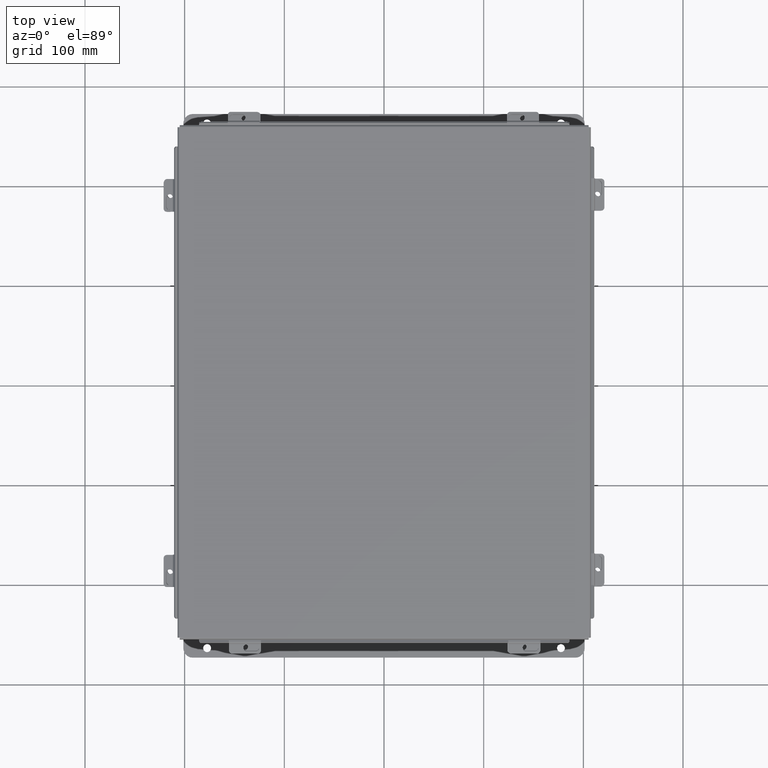
[diagram: clean part render]
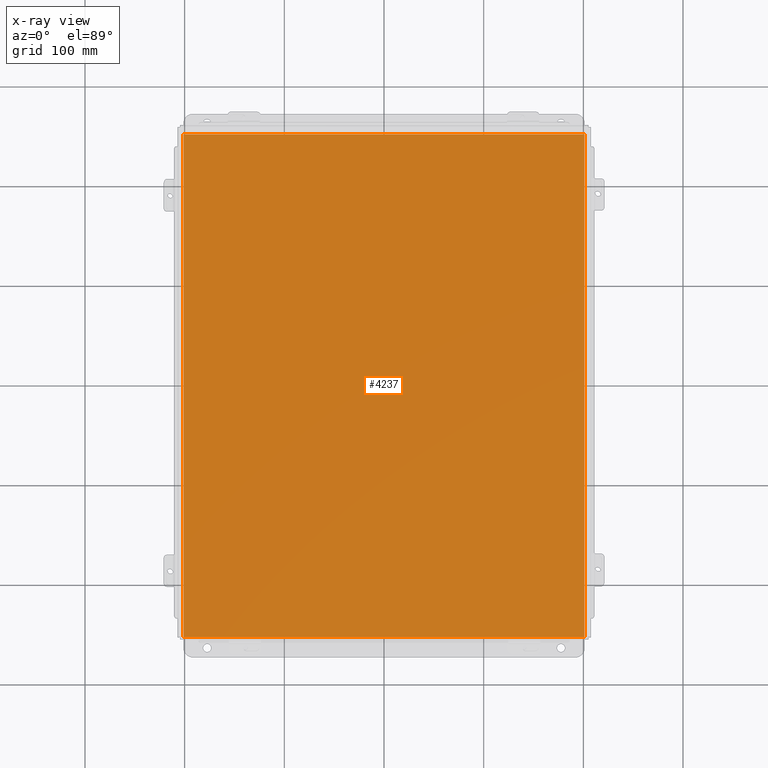
[diagram: x-ray — body ghosted, one internal face saturated and labeled with its STEP entity id]
A machine part, top view, then the same camera in x-ray: the body is ghosted and one INTERNAL B-rep face — a face not visible from any outside direction — is saturated and labeled: STEP entity #4237.
In plain terms, the highlighted planar face has unit normal (0, 0, -1).
Its self-contained STEP definition (entity closure, byte-faithful):
#98 = VERTEX_POINT ( 'NONE', #5816 ) ;
#101 = DIRECTION ( 'NONE',  ( -0.0000000000000000000, 1.000000000000000000, -0.0000000000000000000 ) ) ;
#149 = CARTESIAN_POINT ( 'NONE',  ( -7.999999999999996400, 9.925299999999998200, 0.0000000000000000000 ) ) ;
#480 = CARTESIAN_POINT ( 'NONE',  ( 7.912300000000002800, -9.925300000000000000, 4.268512490100411300E-017 ) ) ;
#797 = CARTESIAN_POINT ( 'NONE',  ( -7.912299999999996600, -9.925299999999998200, 4.268512490100411300E-017 ) ) ;
#967 = VECTOR ( 'NONE', #101, 39.37007874015748100 ) ;
#1110 = ORIENTED_EDGE ( 'NONE', *, *, #9292, .F. ) ;
#1129 = VERTEX_POINT ( 'NONE', #2375 ) ;
#1153 = VECTOR ( 'NONE', #6523, 39.37007874015748100 ) ;
#1173 = CARTESIAN_POINT ( 'NONE',  ( 7.912300000000002800, 9.925299999999996500, 4.268512490100411300E-017 ) ) ;
#1863 = EDGE_CURVE ( 'NONE', #3842, #1129, #5300, .T. ) ;
#1997 = AXIS2_PLACEMENT_3D ( 'NONE', #3017, #6582, #3851 ) ;
#2315 = CARTESIAN_POINT ( 'NONE',  ( 7.912300000000002800, 9.925299999999992900, 4.268512490100411300E-017 ) ) ;
#2375 = CARTESIAN_POINT ( 'NONE',  ( -7.912299999999996600, 9.925299999999998200, 4.268512490100411300E-017 ) ) ;
#2930 = ORIENTED_EDGE ( 'NONE', *, *, #1863, .T. ) ;
#2959 = LINE ( 'NONE', #797, #967 ) ;
#3017 = CARTESIAN_POINT ( 'NONE',  ( 0.0000000000000000000, 0.0000000000000000000, 0.0000000000000000000 ) ) ;
#3427 = FACE_OUTER_BOUND ( 'NONE', #5365, .T. ) ;
#3842 = VERTEX_POINT ( 'NONE', #2315 ) ;
#3851 = DIRECTION ( 'NONE',  ( -1.000000000000000000, 0.0000000000000000000, -0.0000000000000000000 ) ) ;
#3952 = EDGE_CURVE ( 'NONE', #98, #8319, #6248, .T. ) ;
#4237 = ADVANCED_FACE ( 'NONE', ( #3427 ), #8187, .F. ) ;
#4559 = DIRECTION ( 'NONE',  ( -1.000000000000000000, -0.0000000000000000000, -0.0000000000000000000 ) ) ;
#5300 = LINE ( 'NONE', #149, #8661 ) ;
#5365 = EDGE_LOOP ( 'NONE', ( #8489, #2930, #1110, #8498 ) ) ;
#5816 = CARTESIAN_POINT ( 'NONE',  ( -7.912299999999996600, -9.925299999999996500, 4.268512490100411300E-017 ) ) ;
#6045 = CARTESIAN_POINT ( 'NONE',  ( -7.999999999999996400, -9.925299999999998200, 0.0000000000000000000 ) ) ;
#6109 = LINE ( 'NONE', #1173, #1153 ) ;
#6248 = LINE ( 'NONE', #6045, #8108 ) ;
#6408 = EDGE_CURVE ( 'NONE', #3842, #8319, #6109, .T. ) ;
#6523 = DIRECTION ( 'NONE',  ( -0.0000000000000000000, -1.000000000000000000, -0.0000000000000000000 ) ) ;
#6582 = DIRECTION ( 'NONE',  ( 0.0000000000000000000, 0.0000000000000000000, -1.000000000000000000 ) ) ;
#8108 = VECTOR ( 'NONE', #9696, 39.37007874015748100 ) ;
#8187 = PLANE ( 'NONE',  #1997 ) ;
#8319 = VERTEX_POINT ( 'NONE', #480 ) ;
#8489 = ORIENTED_EDGE ( 'NONE', *, *, #6408, .F. ) ;
#8498 = ORIENTED_EDGE ( 'NONE', *, *, #3952, .T. ) ;
#8661 = VECTOR ( 'NONE', #4559, 39.37007874015748100 ) ;
#9292 = EDGE_CURVE ( 'NONE', #98, #1129, #2959, .T. ) ;
#9696 = DIRECTION ( 'NONE',  ( 1.000000000000000000, -1.365923996832131600E-016, 0.0000000000000000000 ) ) ;